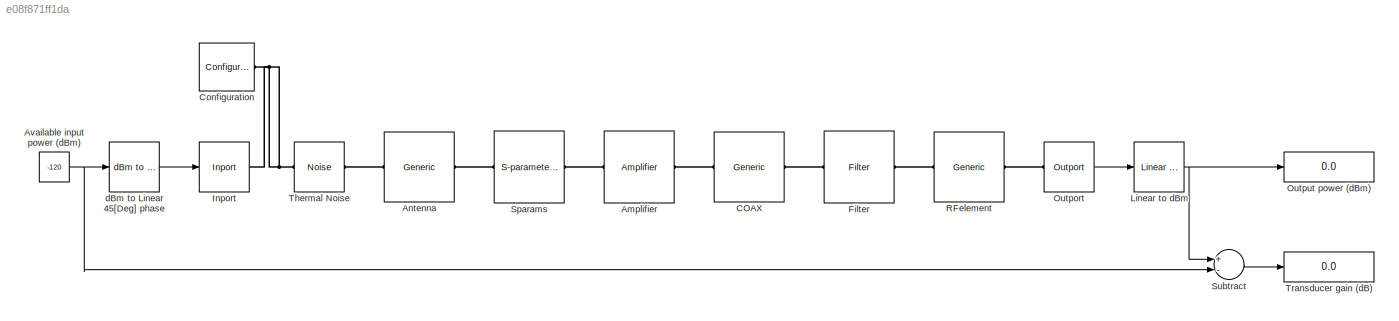
MODEL slx_e08f871ff1da
KIND model
CONFIG AbsTol = auto
CONFIG EnableMultiTasking = off
CONFIG FixedStep = auto
CONFIG MaxStep = auto
CONFIG MinStep = auto
CONFIG RelTol = 1e-3
CONFIG SampleTimeConstraint = Unconstrained
CONFIG Solver = VariableStepAuto
CONFIG SolverName = VariableStepAuto
CONFIG StartTime = 0.0
CONFIG StopTime = 0
BLOCK [Reference] Amplifier  REF=simrfV2elements/Amplifier
  Ports = [0, 0, 0, 0, 0, 1, 1]
  SourceBlock = simrfV2elements/Amplifier
  SourceProductBaseCode = RB
  SourceProductName = RF Blockset
  SourceType = Amplifier
BLOCK [Reference] Antenna  REF=rfBudgetAnalyzer_lib/Generic
  Ports = [0, 0, 0, 0, 0, 1, 1]
  SourceBlock = rfBudgetAnalyzer_lib/Generic
  SourceProductBaseCode = RB
  SourceProductName = RF Blockset
  SourceType = Generic RF Block
BLOCK [Constant] Available input power (dBm)
  Value = -120
BLOCK [Reference] COAX  REF=rfBudgetAnalyzer_lib/Generic
  Ports = [0, 0, 0, 0, 0, 1, 1]
  SourceBlock = rfBudgetAnalyzer_lib/Generic
  SourceProductBaseCode = RB
  SourceProductName = RF Blockset
  SourceType = Generic RF Block
BLOCK [Reference] Configuration  REF=simrfV2util1/Configuration
  Ports = [0, 0, 0, 0, 0, 1]
  SourceBlock = simrfV2util1/Configuration
  SourceProductBaseCode = RB
  SourceProductName = RF Blockset
  SourceType = Configuration
BLOCK [Reference] Filter  REF=simrfV2elements/Filter
  Ports = [0, 0, 0, 0, 0, 1, 1]
  SourceBlock = simrfV2elements/Filter
  SourceProductBaseCode = RB
  SourceProductName = RF Blockset
  SourceType = Filter
  UserDataPersistent = on
BLOCK [Reference] Inport  REF=simrfV2util1/Inport
  Ports = [1, 0, 0, 0, 0, 0, 1]
  SourceBlock = simrfV2util1/Inport
  SourceProductBaseCode = RB
  SourceProductName = RF Blockset
  SourceType = Inport
BLOCK [Reference] Linear to dBm  REF=rfBudgetAnalyzer_lib/Linear to dBm
  Ports = [1, 1]
  SourceBlock = rfBudgetAnalyzer_lib/Linear to dBm
  SourceProductBaseCode = RB
  SourceProductName = RF Blockset
  SourceType = SubSystem
BLOCK [Reference] Outport  REF=simrfV2util1/Outport
  Ports = [0, 1, 0, 0, 0, 1]
  SourceBlock = simrfV2util1/Outport
  SourceProductBaseCode = RB
  SourceProductName = RF Blockset
  SourceType = Outport
BLOCK [Display] Output power (dBm)
  Decimation = 1
  Ports = [1]
BLOCK [Reference] RFelement  REF=rfBudgetAnalyzer_lib/Generic
  Ports = [0, 0, 0, 0, 0, 1, 1]
  SourceBlock = rfBudgetAnalyzer_lib/Generic
  SourceProductBaseCode = RB
  SourceProductName = RF Blockset
  SourceType = Generic RF Block
BLOCK [Reference] Sparams  REF=simrfV2elements/S-parameters
  Ports = [0, 0, 0, 0, 0, 1, 1]
  SourceBlock = simrfV2elements/S-parameters
  SourceProductBaseCode = RB
  SourceProductName = RF Blockset
  SourceType = S-parameters
  UserDataPersistent = on
BLOCK [Sum] Subtract
  InputSameDT = off
  Inputs = +-
  OutDataTypeStr = Inherit: Inherit via internal rule
  Ports = [2, 1]
  SaturateOnIntegerOverflow = off
BLOCK [Reference] Thermal Noise  REF=simrfV2sources1/Noise
  Ports = [0, 0, 0, 0, 0, 1, 1]
  SourceBlock = simrfV2sources1/Noise
  SourceProductBaseCode = RB
  SourceProductName = RF Blockset
  SourceType = Noise Source
BLOCK [Display] Transducer gain (dB)
  Decimation = 1
  Ports = [1]
BLOCK [Reference] dBm to Linear 45[Deg] phase  REF=rfBudgetAnalyzer_lib/dBm to Linear
45[Deg] phase
  Ports = [1, 1]
  SourceBlock = rfBudgetAnalyzer_lib/dBm to Linear\n45[Deg] phase
  SourceProductBaseCode = RB
  SourceProductName = RF Blockset
  SourceType = SubSystem
NET Available input power (dBm):1 -> Subtract:2, dBm to Linear 45[Deg] phase:1
NET Linear to dBm:1 -> Output power (dBm):1, Subtract:1
LINE Outport:1 -> Linear to dBm:1
LINE Subtract:1 -> Transducer gain (dB):1
LINE dBm to Linear 45[Deg] phase:1 -> Inport:1
PLINE Amplifier:LConn1 -- Sparams:RConn1
PLINE Amplifier:RConn1 -- COAX:LConn1
PLINE Antenna:LConn1 -- Thermal Noise:LConn1
PLINE Antenna:RConn1 -- Sparams:LConn1
PLINE COAX:RConn1 -- Filter:LConn1
PNET net1: Configuration:LConn1 -- Inport:RConn1 -- Thermal Noise:RConn1
PLINE Filter:RConn1 -- RFelement:LConn1
PLINE Outport:LConn1 -- RFelement:RConn1
note: NET lines group one-source signal fan-out (src -> all destinations, sorted); 1:1 wires keep LINE; PNET lines group multi-terminal physical nets as a canonical sorted terminal list (undirected conserving connections); 2-terminal nets keep the pairwise PLINE form
